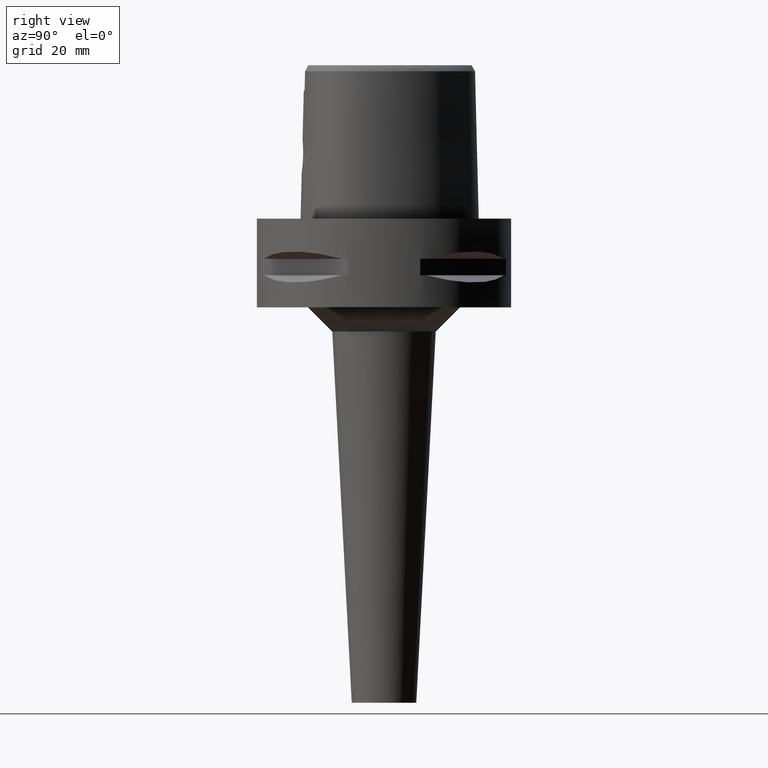
[diagram: clean part render]
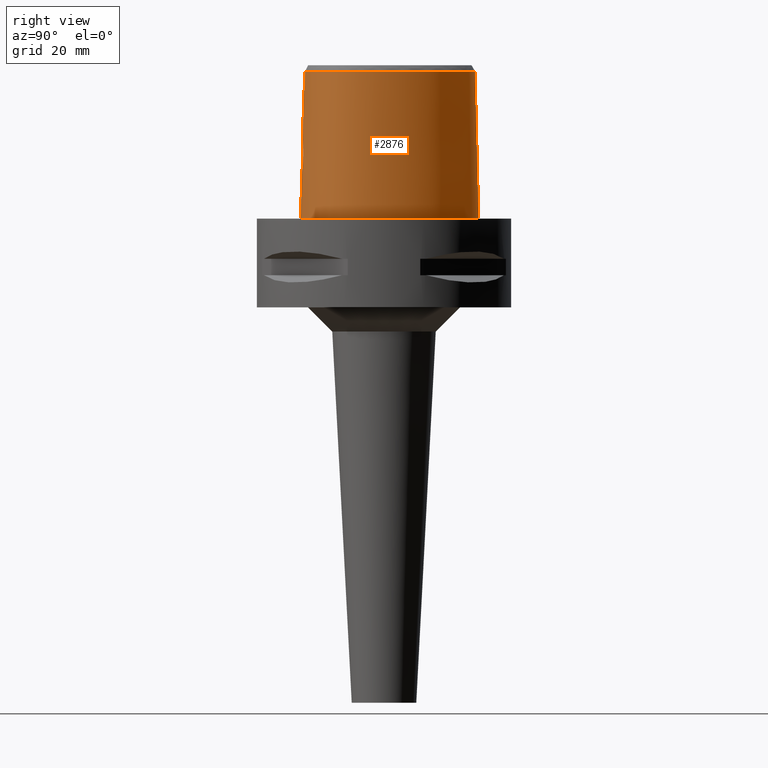
[diagram: same view with one face highlighted and labeled with its STEP entity id]
A machine part, right view. The second image highlights one B-rep face of the part: STEP entity #2876.
In plain terms, the highlighted face is a freeform B-spline surface patch.
Its self-contained STEP definition (entity closure, byte-faithful):
#132=CARTESIAN_POINT('',(3.637738219117E0,-1.956971420299E1,3.652185956444E1));
#142=CARTESIAN_POINT('',(-1.721538145818E-11,2.256201468012E1,
3.652186680744E1));
#143=CARTESIAN_POINT('',(3.965955729533E-1,2.256201468011E1,3.652186680744E1));
#144=CARTESIAN_POINT('',(1.187310560760E0,2.252092021561E1,3.652180099767E1));
#145=CARTESIAN_POINT('',(2.442402830144E0,2.232551836945E1,3.652187528945E1));
#146=CARTESIAN_POINT('',(3.761237290235E0,2.198008278182E1,3.652186366613E1));
#147=CARTESIAN_POINT('',(5.154149655883E0,2.146505907561E1,3.652187189651E1));
#148=CARTESIAN_POINT('',(6.633466693625E0,2.074994455708E1,3.652187179083E1));
#149=CARTESIAN_POINT('',(8.146336862021E0,1.983748530496E1,3.652186486213E1));
#150=CARTESIAN_POINT('',(9.645748794929E0,1.874971988199E1,3.652186781629E1));
#151=CARTESIAN_POINT('',(1.115825380455E1,1.746181591784E1,3.652186876281E1));
#152=CARTESIAN_POINT('',(1.277062784309E1,1.585988966685E1,3.652186742180E1));
#153=CARTESIAN_POINT('',(1.444428556761E1,1.390005164658E1,3.652185960901E1));
#154=CARTESIAN_POINT('',(1.602003482255E1,1.171681796203E1,3.652187260721E1));
#155=CARTESIAN_POINT('',(1.745065365791E1,9.360176696054E0,3.652185794861E1));
#156=CARTESIAN_POINT('',(1.867721988939E1,6.922274889781E0,3.652184595595E1));
#157=CARTESIAN_POINT('',(1.968004403474E1,4.452166599816E0,3.652187250658E1));
#158=CARTESIAN_POINT('',(2.040667098376E1,2.132436657727E0,3.652185903590E1));
#159=CARTESIAN_POINT('',(2.088219635987E1,5.311776789851E-2,3.652187686914E1));
#160=CARTESIAN_POINT('',(2.116494961520E1,-1.844499784482E0,3.652186168028E1));
#161=CARTESIAN_POINT('',(2.128713909480E1,-3.646830254346E0,3.652187069716E1));
#162=CARTESIAN_POINT('',(2.125212813681E1,-5.365942966314E0,3.652186573218E1));
#163=CARTESIAN_POINT('',(2.107097506962E1,-6.931985416922E0,3.652186956303E1));
#164=CARTESIAN_POINT('',(2.077090172438E1,-8.325498760265E0,3.652186895729E1));
#165=CARTESIAN_POINT('',(2.036593407355E1,-9.582351385724E0,3.652186699924E1));
#166=CARTESIAN_POINT('',(1.987141881510E1,-1.070880413084E1,3.652185947265E1));
#167=CARTESIAN_POINT('',(1.928300857661E1,-1.174219210864E1,3.652191236411E1));
#168=CARTESIAN_POINT('',(1.856968785631E1,-1.273681430106E1,3.652185866314E1));
#169=CARTESIAN_POINT('',(1.770313057004E1,-1.371653952915E1,3.652187032379E1));
#170=CARTESIAN_POINT('',(1.666640404445E1,-1.467597476383E1,3.652187211280E1));
#171=CARTESIAN_POINT('',(1.542636231136E1,-1.561771993739E1,3.652186521456E1));
#172=CARTESIAN_POINT('',(1.397658397403E1,-1.651542973955E1,3.652186949488E1));
#173=CARTESIAN_POINT('',(1.236800436784E1,-1.732348461296E1,3.652186596390E1));
#174=CARTESIAN_POINT('',(1.059931274935E1,-1.803800031448E1,3.652187551725E1));
#175=CARTESIAN_POINT('',(8.612860871698E0,-1.866939927706E1,3.652185400551E1));
#176=CARTESIAN_POINT('',(6.262379500431E0,-1.921725066217E1,3.652188114446E1));
#177=CARTESIAN_POINT('',(4.536959498075E0,-1.947390516424E1,3.652183646259E1));
#178=CARTESIAN_POINT('',(3.637738219117E0,-1.956971420299E1,3.652185956444E1));
#251=DIRECTION('',(-1.665636293796E-9,-2.499140646182E-2,-9.996876660253E-1));
#252=VECTOR('',#251,1.225382733632E1);
#253=CARTESIAN_POINT('',(2.041042029991E-8,-1.988004246002E1,3.180000004972E1));
#254=LINE('',#253,#252);
#272=CARTESIAN_POINT('',(-9.433993878922E-13,-2.038876923348E1,1.145E1));
#277=DIRECTION('',(-5.771733058852E-13,-2.499051295390E-2,-9.996876883619E-1));
#278=VECTOR('',#277,1.145357708542E1);
#279=CARTESIAN_POINT('',(-9.433993878922E-13,-2.038876923348E1,1.145E1));
#280=LINE('',#279,#278);
#300=CARTESIAN_POINT('',(-7.554098338496E-12,-2.0675E1,5.802765675374E-14));
#301=CARTESIAN_POINT('',(9.423976488155E-1,-2.0675E1,5.802765675374E-14));
#302=CARTESIAN_POINT('',(2.793376130496E0,-2.060121898341E1,
-2.693072922207E-14));
#303=CARTESIAN_POINT('',(5.508073925153E0,-2.027764424331E1,0.E0));
#304=CARTESIAN_POINT('',(8.041996448639E0,-1.976541898218E1,0.E0));
#305=CARTESIAN_POINT('',(1.034737627933E1,-1.909911630638E1,0.E0));
#306=CARTESIAN_POINT('',(1.239658963969E1,-1.831453968020E1,0.E0));
#307=CARTESIAN_POINT('',(1.418694441822E1,-1.744434665725E1,0.E0));
#308=CARTESIAN_POINT('',(1.573225785650E1,-1.651379946435E1,0.E0));
#309=CARTESIAN_POINT('',(1.705313052344E1,-1.554151025429E1,0.E0));
#310=CARTESIAN_POINT('',(1.817388257844E1,-1.453902729280E1,0.E0));
#311=CARTESIAN_POINT('',(1.911891272271E1,-1.350974485467E1,0.E0));
#312=CARTESIAN_POINT('',(1.990146256093E1,-1.246481285694E1,0.E0));
#313=CARTESIAN_POINT('',(2.055285293415E1,-1.138079777910E1,0.E0));
#314=CARTESIAN_POINT('',(2.109925775097E1,-1.021351038987E1,0.E0));
#315=CARTESIAN_POINT('',(2.155091393640E1,-8.925976888341E0,0.E0));
#316=CARTESIAN_POINT('',(2.189689616524E1,-7.502520528071E0,0.E0));
#317=CARTESIAN_POINT('',(2.212256787027E1,-5.926491443589E0,0.E0));
#318=CARTESIAN_POINT('',(2.220771735646E1,-4.181470985909E0,0.E0));
#319=CARTESIAN_POINT('',(2.212713249782E1,-2.255944587063E0,0.E0));
#320=CARTESIAN_POINT('',(2.185240504158E1,-1.472618446542E-1,0.E0));
#321=CARTESIAN_POINT('',(2.135541226563E1,2.132648369099E0,0.E0));
#322=CARTESIAN_POINT('',(2.061444907364E1,4.550450910742E0,0.E0));
#323=CARTESIAN_POINT('',(1.962119436316E1,7.049507425535E0,0.E0));
#324=CARTESIAN_POINT('',(1.838889529103E1,9.549313604088E0,0.E0));
#325=CARTESIAN_POINT('',(1.695113881691E1,1.196337926030E1,0.E0));
#326=CARTESIAN_POINT('',(1.535472059642E1,1.421672847215E1,0.E0));
#327=CARTESIAN_POINT('',(1.366124595007E1,1.624188482830E1,0.E0));
#328=CARTESIAN_POINT('',(1.193203164444E1,1.799717625796E1,0.E0));
#329=CARTESIAN_POINT('',(1.021541912520E1,1.947089059358E1,0.E0));
#330=CARTESIAN_POINT('',(8.546165491836E0,2.067136251763E1,0.E0));
#331=CARTESIAN_POINT('',(6.943755701445E0,2.162065608947E1,0.E0));
#332=CARTESIAN_POINT('',(5.416271680727E0,2.234588874686E1,0.E0));
#333=CARTESIAN_POINT('',(3.963833922459E0,2.287421882732E1,0.E0));
#334=CARTESIAN_POINT('',(2.580913585919E0,2.322977851709E1,0.E0));
#335=CARTESIAN_POINT('',(1.261650265957E0,2.343215126304E1,
-2.559106284495E-14));
#336=CARTESIAN_POINT('',(4.145894550214E-1,2.347499999999E1,
5.514107688972E-14));
#337=CARTESIAN_POINT('',(4.563156641447E-11,2.347499999999E1,
5.514107688972E-14));
#342=CARTESIAN_POINT('',(4.563156641447E-11,2.347499999999E1,
5.514107688972E-14));
#379=CARTESIAN_POINT('',(-7.554098338496E-12,-2.0675E1,5.802765675374E-14));
#966=CARTESIAN_POINT('',(-9.433993878922E-13,-2.038876923348E1,1.145E1));
#967=CARTESIAN_POINT('',(3.518410039388E-1,-2.038876923348E1,1.145E1));
#968=CARTESIAN_POINT('',(1.056002269219E0,-2.037568214282E1,1.154238708990E1));
#969=CARTESIAN_POINT('',(2.040385422199E0,-2.032131306427E1,1.194792367503E1));
#970=CARTESIAN_POINT('',(2.891794145478E0,-2.024379318177E1,1.259807706062E1));
#971=CARTESIAN_POINT('',(3.545775398700E0,-2.016065841224E1,1.344776599254E1));
#972=CARTESIAN_POINT('',(3.957111572053E0,-2.009016928170E1,1.443938952574E1));
#973=CARTESIAN_POINT('',(4.096327614963E0,-2.004685475213E1,1.549997055253E1));
#974=CARTESIAN_POINT('',(3.957577704512E0,-2.003680793094E1,1.655714913641E1));
#975=CARTESIAN_POINT('',(3.549577819492E0,-2.005726835327E1,1.754497021867E1));
#976=CARTESIAN_POINT('',(2.899403737141E0,-2.009772754991E1,1.839411373098E1));
#977=CARTESIAN_POINT('',(2.049555943289E0,-2.014302748467E1,1.904720420744E1));
#978=CARTESIAN_POINT('',(1.060000729701E0,-2.017769463663E1,1.945708074101E1));
#979=CARTESIAN_POINT('',(3.531896813643E-1,-2.018628283969E1,1.955E1));
#980=CARTESIAN_POINT('',(0.E0,-2.018628283969E1,1.955E1));
#985=CARTESIAN_POINT('',(3.736696120838E0,-1.967778323292E1,3.180000004973E1));
#986=CARTESIAN_POINT('',(3.726005752326E0,-1.966575923680E1,3.232454431401E1));
#987=CARTESIAN_POINT('',(3.704089546608E0,-1.964135163374E1,3.337368958252E1));
#988=CARTESIAN_POINT('',(3.671106187705E0,-1.960533295284E1,3.494764256979E1));
#989=CARTESIAN_POINT('',(3.649042743234E0,-1.958170238761E1,3.599710209057E1));
#990=CARTESIAN_POINT('',(3.637738219117E0,-1.956971420299E1,3.652185956444E1));
#995=DIRECTION('',(1.720265844315E-12,2.499051290963E-2,-9.996876883630E-1));
#996=VECTOR('',#995,3.653327657485E1);
#997=CARTESIAN_POINT('',(-1.721538145818E-11,2.256201468012E1,
3.652186680744E1));
#998=LINE('',#997,#996);
#1002=CARTESIAN_POINT('',(3.736696120838E0,-1.967778323292E1,3.180000004973E1));
#1003=CARTESIAN_POINT('',(3.322953877844E0,-1.972294683117E1,3.180000004973E1));
#1004=CARTESIAN_POINT('',(2.494485023251E0,-1.979770229043E1,3.179999998342E1));
#1005=CARTESIAN_POINT('',(1.247889117313E0,-1.986528006854E1,3.179999998343E1));
#1006=CARTESIAN_POINT('',(4.161790006858E-1,-1.988004246001E1,
3.180000004972E1));
#1007=CARTESIAN_POINT('',(2.041042029991E-8,-1.988004246002E1,
3.180000004972E1));
#1012=CARTESIAN_POINT('',(2.041042029991E-8,-1.988004246002E1,
3.180000004972E1));
#1457=VERTEX_POINT('',#132);
#1458=VERTEX_POINT('',#985);
#1464=CARTESIAN_POINT('',(-1.721538145818E-11,2.256201468012E1,
3.652186680744E1));
#1465=VERTEX_POINT('',#1464);
#1466=VERTEX_POINT('',#342);
#1467=VERTEX_POINT('',#379);
#1468=VERTEX_POINT('',#1012);
#1469=CARTESIAN_POINT('',(0.E0,-2.018628283969E1,1.955E1));
#1470=VERTEX_POINT('',#1469);
#1471=VERTEX_POINT('',#272);
#2764=CARTESIAN_POINT('',(-6.840631437236E-1,-2.068668116922E1,
-7.304378919740E-1));
#2765=CARTESIAN_POINT('',(-6.779734121002E-1,-2.037023475528E1,
1.193048556891E1));
#2766=CARTESIAN_POINT('',(-6.718836804767E-1,-2.005378834135E1,
2.459140902979E1));
#2767=CARTESIAN_POINT('',(-6.657939488533E-1,-1.973734192741E1,
3.725233249068E1));
#2768=CARTESIAN_POINT('',(-4.561077450372E-1,-2.069106756151E1,
-7.304378919740E-1));
#2769=CARTESIAN_POINT('',(-4.520500659956E-1,-2.037458439212E1,
1.193048556891E1));
#2770=CARTESIAN_POINT('',(-4.479923869540E-1,-2.005810122273E1,
2.459140902979E1));
#2771=CARTESIAN_POINT('',(-4.439347079124E-1,-1.974161805334E1,
3.725233249068E1));
#2772=CARTESIAN_POINT('',(1.886855603554E0,-2.071358920071E1,
-7.304378919740E-1));
#2773=CARTESIAN_POINT('',(1.870063857719E0,-2.039691443075E1,1.193048556891E1));
#2774=CARTESIAN_POINT('',(1.853272111885E0,-2.008023966079E1,2.459140902979E1));
#2775=CARTESIAN_POINT('',(1.836480366051E0,-1.976356489083E1,3.725233249067E1));
#2776=CARTESIAN_POINT('',(6.344715577640E0,-2.031619965492E1,
-7.304378919740E-1));
#2777=CARTESIAN_POINT('',(6.288476564881E0,-2.000290563630E1,1.193048556891E1));
#2778=CARTESIAN_POINT('',(6.232237552121E0,-1.968961161767E1,2.459140902979E1));
#2779=CARTESIAN_POINT('',(6.175998539361E0,-1.937631759905E1,3.725233249068E1));
#2780=CARTESIAN_POINT('',(1.123887130435E1,-1.891049776516E1,
-7.304378919740E-1));
#2781=CARTESIAN_POINT('',(1.113012652838E1,-1.861140108569E1,1.193048556891E1));
#2782=CARTESIAN_POINT('',(1.102138175241E1,-1.831230440621E1,2.459140902979E1));
#2783=CARTESIAN_POINT('',(1.091263697644E1,-1.801320772674E1,3.725233249068E1));
#2784=CARTESIAN_POINT('',(1.468244497383E1,-1.723001773492E1,
-7.304378919740E-1));
#2785=CARTESIAN_POINT('',(1.452531259353E1,-1.695413741291E1,1.193048556891E1));
#2786=CARTESIAN_POINT('',(1.436818021322E1,-1.667825709090E1,2.459140902979E1));
#2787=CARTESIAN_POINT('',(1.421104783292E1,-1.640237676889E1,3.725233249068E1));
#2788=CARTESIAN_POINT('',(1.697022731440E1,-1.569280483534E1,
-7.304378919740E-1));
#2789=CARTESIAN_POINT('',(1.677374378110E1,-1.544292466862E1,1.193048556891E1));
#2790=CARTESIAN_POINT('',(1.657726024781E1,-1.519304450191E1,2.459140902979E1));
#2791=CARTESIAN_POINT('',(1.638077671452E1,-1.494316433520E1,3.725233249068E1));
#2792=CARTESIAN_POINT('',(1.858171406974E1,-1.418198046917E1,
-7.304378919740E-1));
#2793=CARTESIAN_POINT('',(1.835112148552E1,-1.396357030564E1,1.193048556891E1));
#2794=CARTESIAN_POINT('',(1.812052890131E1,-1.374516014211E1,2.459140902979E1));
#2795=CARTESIAN_POINT('',(1.788993631710E1,-1.352674997859E1,3.725233249068E1));
#2796=CARTESIAN_POINT('',(1.966427015057E1,-1.283600704986E1,
-7.304378919740E-1));
#2797=CARTESIAN_POINT('',(1.940779762377E1,-1.264961922729E1,1.193048556891E1));
#2798=CARTESIAN_POINT('',(1.915132509698E1,-1.246323140471E1,2.459140902979E1));
#2799=CARTESIAN_POINT('',(1.889485257018E1,-1.227684358214E1,3.725233249068E1));
#2800=CARTESIAN_POINT('',(2.036546124974E1,-1.175800453474E1,
-7.304378919740E-1));
#2801=CARTESIAN_POINT('',(2.009084467084E1,-1.159945457839E1,1.193048556891E1));
#2802=CARTESIAN_POINT('',(1.981622809194E1,-1.144090462204E1,2.459140902979E1));
#2803=CARTESIAN_POINT('',(1.954161151305E1,-1.128235466569E1,3.725233249068E1));
#2804=CARTESIAN_POINT('',(2.094844326352E1,-1.061175397215E1,
-7.304378919740E-1));
#2805=CARTESIAN_POINT('',(2.065879041251E1,-1.048283616324E1,1.193048556891E1));
#2806=CARTESIAN_POINT('',(2.036913756150E1,-1.035391835433E1,2.459140902979E1));
#2807=CARTESIAN_POINT('',(2.007948471048E1,-1.022500054542E1,3.725233249068E1));
#2808=CARTESIAN_POINT('',(2.157281239774E1,-9.001246196704E0,
-7.304378919740E-1));
#2809=CARTESIAN_POINT('',(2.126836734530E1,-8.910752224661E0,1.193048556891E1));
#2810=CARTESIAN_POINT('',(2.096392229287E1,-8.820258252618E0,2.459140902979E1));
#2811=CARTESIAN_POINT('',(2.065947724043E1,-8.729764280576E0,3.725233249068E1));
#2812=CARTESIAN_POINT('',(2.207548129639E1,-6.850245536243E0,
-7.304378919740E-1));
#2813=CARTESIAN_POINT('',(2.176083704142E1,-6.805026033018E0,1.193048556891E1));
#2814=CARTESIAN_POINT('',(2.144619278645E1,-6.759806529792E0,2.459140902979E1));
#2815=CARTESIAN_POINT('',(2.113154853148E1,-6.714587026567E0,3.725233249068E1));
#2816=CARTESIAN_POINT('',(2.226285557071E1,-4.100361500018E0,
-7.304378919740E-1));
#2817=CARTESIAN_POINT('',(2.194536970659E1,-4.102220499711E0,1.193048556891E1));
#2818=CARTESIAN_POINT('',(2.162788384247E1,-4.104079499404E0,2.459140902979E1));
#2819=CARTESIAN_POINT('',(2.131039797834E1,-4.105938499097E0,3.725233249068E1));
#2820=CARTESIAN_POINT('',(2.199640702121E1,-2.778990152973E-1,
-7.304378919740E-1));
#2821=CARTESIAN_POINT('',(2.168301093666E1,-3.332744168110E-1,
1.193048556891E1));
#2822=CARTESIAN_POINT('',(2.136961485212E1,-3.886498183247E-1,
2.459140902979E1));
#2823=CARTESIAN_POINT('',(2.105621876757E1,-4.440252198383E-1,
3.725233249068E1));
#2824=CARTESIAN_POINT('',(2.076670355416E1,4.663413655805E0,
-7.304378919740E-1));
#2825=CARTESIAN_POINT('',(2.046725036785E1,4.555493621851E0,1.193048556891E1));
#2826=CARTESIAN_POINT('',(2.016779718153E1,4.447573587896E0,2.459140902979E1));
#2827=CARTESIAN_POINT('',(1.986834399521E1,4.339653553942E0,3.725233249068E1));
#2828=CARTESIAN_POINT('',(1.808416038780E1,1.044089487480E1,
-7.304378919740E-1));
#2829=CARTESIAN_POINT('',(1.780867301062E1,1.028184204494E1,1.193048556891E1));
#2830=CARTESIAN_POINT('',(1.753318563343E1,1.012278921508E1,2.459140902979E1));
#2831=CARTESIAN_POINT('',(1.725769825625E1,9.963736385212E0,3.725233249068E1));
#2832=CARTESIAN_POINT('',(1.442198652410E1,1.565278600597E1,
-7.304378919740E-1));
#2833=CARTESIAN_POINT('',(1.417879752575E1,1.544741190249E1,1.193048556891E1));
#2834=CARTESIAN_POINT('',(1.393560852741E1,1.524203779901E1,2.459140902979E1));
#2835=CARTESIAN_POINT('',(1.369241952906E1,1.503666369553E1,3.725233249068E1));
#2836=CARTESIAN_POINT('',(1.075753574158E1,1.918839676161E1,
-7.304378919740E-1));
#2837=CARTESIAN_POINT('',(1.055288400434E1,1.894467581039E1,1.193048556891E1));
#2838=CARTESIAN_POINT('',(1.034823226710E1,1.870095485916E1,2.459140902979E1));
#2839=CARTESIAN_POINT('',(1.014358052985E1,1.845723390794E1,3.725233249068E1));
#2840=CARTESIAN_POINT('',(7.580410842846E0,2.133037926750E1,
-7.304378919740E-1));
#2841=CARTESIAN_POINT('',(7.420053095594E0,2.105635738082E1,1.193048556891E1));
#2842=CARTESIAN_POINT('',(7.259695348342E0,2.078233549414E1,2.459140902979E1));
#2843=CARTESIAN_POINT('',(7.099337601090E0,2.050831360746E1,3.725233249068E1));
#2844=CARTESIAN_POINT('',(5.105252918086E0,2.254305024734E1,
-7.304378919740E-1));
#2845=CARTESIAN_POINT('',(4.987110637509E0,2.224795273090E1,1.193048556891E1));
#2846=CARTESIAN_POINT('',(4.868968356932E0,2.195285521445E1,2.459140902979E1));
#2847=CARTESIAN_POINT('',(4.750826076355E0,2.165775769801E1,3.725233249068E1));
#2848=CARTESIAN_POINT('',(2.568271206870E0,2.331126238913E1,
-7.304378919740E-1));
#2849=CARTESIAN_POINT('',(2.503210888373E0,2.299958931081E1,1.193048556891E1));
#2850=CARTESIAN_POINT('',(2.438150569876E0,2.268791623250E1,2.459140902979E1));
#2851=CARTESIAN_POINT('',(2.373090251379E0,2.237624315418E1,3.725233249068E1));
#2852=CARTESIAN_POINT('',(6.155340743163E-1,2.351883498286E1,
-7.304378919740E-1));
#2853=CARTESIAN_POINT('',(5.990981971243E-1,2.320165460280E1,1.193048556891E1));
#2854=CARTESIAN_POINT('',(5.826623199324E-1,2.288447422273E1,2.459140902979E1));
#2855=CARTESIAN_POINT('',(5.662264427404E-1,2.256729384266E1,3.725233249068E1));
#2856=CARTESIAN_POINT('',(-4.812391256236E-1,2.348607176817E1,
-7.304378919740E-1));
#2857=CARTESIAN_POINT('',(-4.685451932865E-1,2.316976065946E1,
1.193048556891E1));
#2858=CARTESIAN_POINT('',(-4.558512609494E-1,2.285344955076E1,
2.459140902979E1));
#2859=CARTESIAN_POINT('',(-4.431573286123E-1,2.253713844205E1,
3.725233249068E1));
#2860=CARTESIAN_POINT('',(-7.217521650921E-1,2.347150799226E1,
-7.304378919740E-1));
#2861=CARTESIAN_POINT('',(-7.025952811152E-1,2.315559737311E1,
1.193048556891E1));
#2862=CARTESIAN_POINT('',(-6.834383971383E-1,2.283968675395E1,
2.459140902979E1));
#2863=CARTESIAN_POINT('',(-6.642815131614E-1,2.252377613480E1,
3.725233249068E1));
#2864=B_SPLINE_SURFACE_WITH_KNOTS('',3,3,((#2764,#2765,#2766,#2767),(#2768,
#2769,#2770,#2771),(#2772,#2773,#2774,#2775),(#2776,#2777,#2778,#2779),(#2780,
#2781,#2782,#2783),(#2784,#2785,#2786,#2787),(#2788,#2789,#2790,#2791),(#2792,
#2793,#2794,#2795),(#2796,#2797,#2798,#2799),(#2800,#2801,#2802,#2803),(#2804,
#2805,#2806,#2807),(#2808,#2809,#2810,#2811),(#2812,#2813,#2814,#2815),(#2816,
#2817,#2818,#2819),(#2820,#2821,#2822,#2823),(#2824,#2825,#2826,#2827),(#2828,
#2829,#2830,#2831),(#2832,#2833,#2834,#2835),(#2836,#2837,#2838,#2839),(#2840,
#2841,#2842,#2843),(#2844,#2845,#2846,#2847),(#2848,#2849,#2850,#2851),(#2852,
#2853,#2854,#2855),(#2856,#2857,#2858,#2859),(#2860,#2861,#2862,#2863)),
.UNSPECIFIED.,.F.,.F.,.F.,(4,1,1,1,1,1,1,1,1,1,1,1,1,1,1,1,1,1,1,1,1,1,4),(4,4),
(-8.985960173574E-3,0.E0,8.333333333339E-2,1.666666666667E-1,2.083333333333E-1,
2.5E-1,2.916666666667E-1,3.125E-1,3.333333333333E-1,3.541666666666E-1,
3.749999999999E-1,4.166666666666E-1,4.583333333332E-1,4.999999999999E-1,
5.833333333331E-1,6.666666666665E-1,7.499999999998E-1,8.333333333330E-1,
8.749999999997E-1,9.166666666664E-1,9.583333333330E-1,1.E0,1.011710456763E0),(
-4.388364970020E-9,1.000000223807E0),.UNSPECIFIED.);
#2865=ORIENTED_EDGE('',*,*,#2297,.F.);
#2866=ORIENTED_EDGE('',*,*,#2281,.F.);
#2867=ORIENTED_EDGE('',*,*,#2756,.T.);
#2868=ORIENTED_EDGE('',*,*,#2277,.F.);
#2870=ORIENTED_EDGE('',*,*,#2869,.F.);
#2871=ORIENTED_EDGE('',*,*,#1640,.T.);
#2872=ORIENTED_EDGE('',*,*,#1906,.F.);
#2873=ORIENTED_EDGE('',*,*,#2271,.T.);
#2874=EDGE_LOOP('',(#2865,#2866,#2867,#2868,#2870,#2871,#2872,#2873));
#2875=FACE_OUTER_BOUND('',#2874,.F.);
#179=B_SPLINE_CURVE_WITH_KNOTS('',3,(#142,#143,#144,#145,#146,#147,#148,#149,
#150,#151,#152,#153,#154,#155,#156,#157,#158,#159,#160,#161,#162,#163,#164,#165,
#166,#167,#168,#169,#170,#171,#172,#173,#174,#175,#176,#177,#178),.UNSPECIFIED.,
.F.,.F.,(4,1,1,1,1,1,1,1,1,1,1,1,1,1,1,1,1,1,1,1,1,1,1,1,1,1,1,1,1,1,1,1,1,1,4),
(0.E0,2.941176470588E-2,5.882352941176E-2,8.823529411765E-2,1.176470588235E-1,
1.470588235294E-1,1.764705882353E-1,2.058823529412E-1,2.352941176471E-1,
2.647058823529E-1,2.941176470588E-1,3.235294117647E-1,3.529411764706E-1,
3.823529411765E-1,4.117647058824E-1,4.411764705882E-1,4.705882352941E-1,5.E-1,
5.294117647059E-1,5.588235294118E-1,5.882352941176E-1,6.176470588235E-1,
6.470588235294E-1,6.764705882353E-1,7.058823529412E-1,7.352941176471E-1,
7.647058823529E-1,7.941176470588E-1,8.235294117647E-1,8.529411764706E-1,
8.823529411765E-1,9.117647058824E-1,9.411764705882E-1,9.705882352941E-1,1.E0),
.UNSPECIFIED.);
#338=B_SPLINE_CURVE_WITH_KNOTS('',3,(#300,#301,#302,#303,#304,#305,#306,#307,
#308,#309,#310,#311,#312,#313,#314,#315,#316,#317,#318,#319,#320,#321,#322,#323,
#324,#325,#326,#327,#328,#329,#330,#331,#332,#333,#334,#335,#336,#337),
.UNSPECIFIED.,.F.,.F.,(4,1,1,1,1,1,1,1,1,1,1,1,1,1,1,1,1,1,1,1,1,1,1,1,1,1,1,1,
1,1,1,1,1,1,1,4),(0.E0,2.857142857143E-2,5.714285714286E-2,8.571428571429E-2,
1.142857142857E-1,1.428571428571E-1,1.714285714286E-1,2.E-1,2.285714285714E-1,
2.571428571429E-1,2.857142857143E-1,3.142857142857E-1,3.428571428571E-1,
3.714285714286E-1,4.E-1,4.285714285714E-1,4.571428571429E-1,4.857142857143E-1,
5.142857142857E-1,5.428571428571E-1,5.714285714286E-1,6.E-1,6.285714285714E-1,
6.571428571429E-1,6.857142857143E-1,7.142857142857E-1,7.428571428571E-1,
7.714285714286E-1,8.E-1,8.285714285714E-1,8.571428571429E-1,8.857142857143E-1,
9.142857142857E-1,9.428571428571E-1,9.714285714286E-1,1.E0),.UNSPECIFIED.);
#981=B_SPLINE_CURVE_WITH_KNOTS('',3,(#966,#967,#968,#969,#970,#971,#972,#973,
#974,#975,#976,#977,#978,#979,#980),.UNSPECIFIED.,.F.,.F.,(4,1,1,1,1,1,1,1,1,1,
1,1,4),(0.E0,8.333333333333E-2,1.666666666667E-1,2.5E-1,3.333333333333E-1,
4.166666666667E-1,5.E-1,5.833333333333E-1,6.666666666667E-1,7.5E-1,
8.333333333333E-1,9.166666666667E-1,1.E0),.UNSPECIFIED.);
#991=B_SPLINE_CURVE_WITH_KNOTS('',3,(#985,#986,#987,#988,#989,#990),
.UNSPECIFIED.,.F.,.F.,(4,1,1,4),(0.E0,3.333333333333E-1,6.666666666667E-1,1.E0),
.UNSPECIFIED.);
#1008=B_SPLINE_CURVE_WITH_KNOTS('',3,(#1002,#1003,#1004,#1005,#1006,#1007),
.UNSPECIFIED.,.F.,.F.,(4,1,1,4),(0.E0,3.333333333333E-1,6.666666666667E-1,1.E0),
.UNSPECIFIED.);
#1640=EDGE_CURVE('',#1458,#1457,#991,.T.);
#1906=EDGE_CURVE('',#1465,#1457,#179,.T.);
#2271=EDGE_CURVE('',#1465,#1466,#998,.T.);
#2277=EDGE_CURVE('',#1468,#1470,#254,.T.);
#2281=EDGE_CURVE('',#1471,#1467,#280,.T.);
#2297=EDGE_CURVE('',#1467,#1466,#338,.T.);
#2756=EDGE_CURVE('',#1471,#1470,#981,.T.);
#2869=EDGE_CURVE('',#1458,#1468,#1008,.T.);
#2876=ADVANCED_FACE('',(#2875),#2864,.T.);